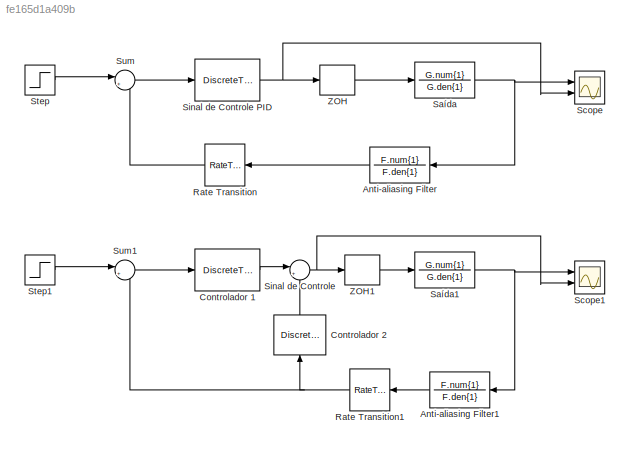
MODEL slx_fe165d1a409b
KIND model
CONFIG AbsTol = auto
CONFIG EnableMultiTasking = off
CONFIG FixedStep = auto
CONFIG MaxStep = auto
CONFIG MinStep = auto
CONFIG RelTol = 1e-3
CONFIG SampleTimeConstraint = Unconstrained
CONFIG SolverName = VariableStepAuto
CONFIG StartTime = 0.0
CONFIG StopTime = 1
BLOCK [TransferFcn] Anti-aliasing Filter
  Denominator = F.den{1}
  NameLocation = top
  Numerator = F.num{1}
BLOCK [TransferFcn] Anti-aliasing Filter1
  Denominator = F.den{1}
  NameLocation = top
  Numerator = F.num{1}
BLOCK [DiscreteTransferFcn] Controlador 1
  Denominator = C1.den{1}
  InputPortMap = u0
  Numerator = C1.num{1}
  Ports = [1, 1]
  SampleTime = T
BLOCK [DiscreteTransferFcn] Controlador 2
  Denominator = C2.den{1}
  InputPortMap = u0
  NameLocation = right
  Numerator = C2.num{1}
  Ports = [1, 1]
  SampleTime = T
BLOCK [RateTransition] Rate Transition
  NameLocation = top
  OutPortSampleTime = T
BLOCK [RateTransition] Rate Transition1
  NameLocation = top
  OutPortSampleTime = T
BLOCK [TransferFcn] Saída
  Denominator = G.den{1}
  Numerator = G.num{1}
BLOCK [TransferFcn] Saída1
  Denominator = G.den{1}
  Numerator = G.num{1}
BLOCK [Scope] Scope
  Floating = off
  NumInputPorts = 2
  Ports = [2]
  ScopeSpecificationString = Simulink.scopes.TimeScopeBlockCfg('CurrentConfiguration', extmgr.ConfigurationSet(extmgr.Configuration('Core','General UI',true,'FigureColor',[1 1 1]),extmgr.Configuration('Core','Source UI',true),extmgr.Configuration('Sources','WiredSimulink',true),extmgr.Configuration('Visuals','Time Domain',true,'SerializedDisplays',{struct('MinYLimReal','-0.13166','MaxYLimReal','1.18494','YLabelReal','','MinYL...<+2555ch>
BLOCK [Scope] Scope1
  Floating = off
  NumInputPorts = 2
  Ports = [2]
  ScopeSpecificationString = Simulink.scopes.TimeScopeBlockCfg('CurrentConfiguration', extmgr.ConfigurationSet(extmgr.Configuration('Core','General UI',true,'FigureColor',[1 1 1]),extmgr.Configuration('Core','Source UI',true),extmgr.Configuration('Sources','WiredSimulink',true,'DataLoggingVariableName','ScopeData1'),extmgr.Configuration('Visuals','Time Domain',true,'SerializedDisplays',{struct('MinYLimReal','-0.13938','MaxYLi...<+2590ch>
BLOCK [Sum] Sinal de Controle
  Inputs = |+-
  Ports = [2, 1]
BLOCK [DiscreteTransferFcn] Sinal de Controle PID
  Denominator = Gpid.den{1}
  InputPortMap = u0
  Numerator = Gpid.num{1}
  Ports = [1, 1]
  SampleTime = T
BLOCK [Step] Step
  SampleTime = 0
  Time = 0
BLOCK [Step] Step1
  SampleTime = 0
  Time = 0
BLOCK [Sum] Sum
  Inputs = |+-
  Ports = [2, 1]
BLOCK [Sum] Sum1
  Inputs = |+-
  Ports = [2, 1]
BLOCK [ZeroOrderHold] ZOH
  SampleTime = T
BLOCK [ZeroOrderHold] ZOH1
  SampleTime = T
LINE Anti-aliasing Filter1:1 -> Rate Transition1:1
LINE Anti-aliasing Filter:1 -> Rate Transition:1
LINE Controlador 1:1 -> Sinal de Controle:1
LINE Controlador 2:1 -> Sinal de Controle:2
NET Rate Transition1:1 -> Controlador 2:1, Sum1:2
LINE Rate Transition:1 -> Sum:2
NET Saída1:1 -> Anti-aliasing Filter1:1, Scope1:1
NET Saída:1 -> Anti-aliasing Filter:1, Scope:1
NET Sinal de Controle PID:1 -> Scope:2, ZOH:1
NET Sinal de Controle:1 -> Scope1:2, ZOH1:1
LINE Step1:1 -> Sum1:1
LINE Step:1 -> Sum:1
LINE Sum1:1 -> Controlador 1:1
LINE Sum:1 -> Sinal de Controle PID:1
LINE ZOH1:1 -> Saída1:1
LINE ZOH:1 -> Saída:1
note: NET lines group one-source signal fan-out (src -> all destinations, sorted); 1:1 wires keep LINE
